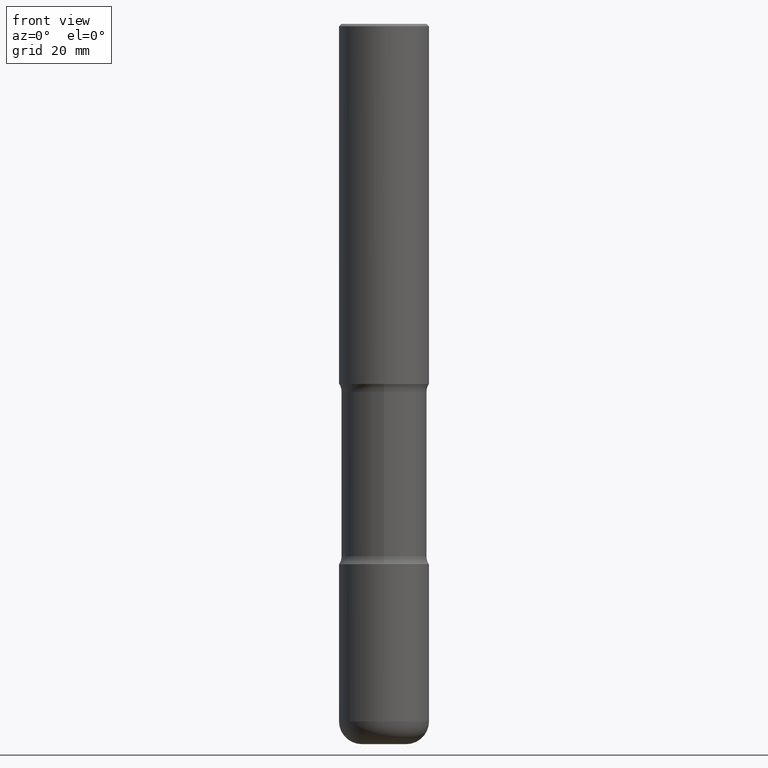
[diagram: clean part render]
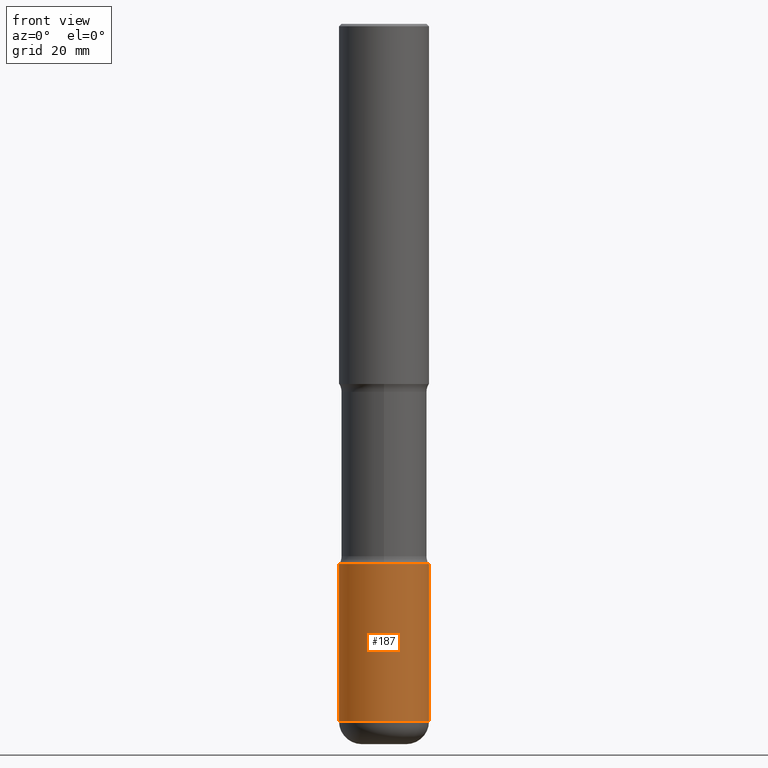
[diagram: same view with one face highlighted and labeled with its STEP entity id]
A machine part, front view. The second image highlights one B-rep face of the part: STEP entity #187.
In plain terms, the highlighted cylindrical surface (partial cylindrical patch) has radius 9.525 mm, axis along (-0, 0, 1).
Its self-contained STEP definition (entity closure, byte-faithful):
#18 = CARTESIAN_POINT ( 'NONE',  ( 0.3750000000000003886, -1.833027702892650691E-14, -4.499999999999999112 ) ) ;
#21 = CARTESIAN_POINT ( 'NONE',  ( 0.000000000000000000, 0.000000000000000000, 0.000000000000000000 ) ) ;
#42 = EDGE_CURVE ( 'NONE', #225, #188, #156, .T. ) ;
#59 = AXIS2_PLACEMENT_3D ( 'NONE', #207, #502, #292 ) ;
#63 = FACE_OUTER_BOUND ( 'NONE', #473, .T. ) ;
#68 = VECTOR ( 'NONE', #343, 39.37007874015748143 ) ;
#113 = EDGE_CURVE ( 'NONE', #225, #444, #451, .T. ) ;
#156 = LINE ( 'NONE', #157, #387 ) ;
#157 = CARTESIAN_POINT ( 'NONE',  ( -0.3750000000000004441, 2.664535259100378852E-15, -1.844600658845591840E-29 ) ) ;
#164 = CARTESIAN_POINT ( 'NONE',  ( -0.3750000000000003886, -1.533405104263603449E-14, -4.499999999999999112 ) ) ;
#177 = CARTESIAN_POINT ( 'NONE',  ( -0.3750000000000004996, -1.762097131957829410E-14, -5.809999999999998721 ) ) ;
#180 = ORIENTED_EDGE ( 'NONE', *, *, #113, .T. ) ;
#187 = ADVANCED_FACE ( 'NONE', ( #63 ), #548, .T. ) ;
#188 = VERTEX_POINT ( 'NONE', #164 ) ;
#206 = DIRECTION ( 'NONE',  ( 1.000000000000000000, -6.982962677686265922E-15, 4.876176775795935793E-29 ) ) ;
#207 = CARTESIAN_POINT ( 'NONE',  ( 1.420817376393564022E-28, -2.028550657867867295E-14, -5.809999999999998721 ) ) ;
#213 = CARTESIAN_POINT ( 'NONE',  ( 1.100460962783311244E-28, -1.571166602479415374E-14, -4.499999999999999112 ) ) ;
#225 = VERTEX_POINT ( 'NONE', #177 ) ;
#244 = EDGE_CURVE ( 'NONE', #188, #363, #536, .T. ) ;
#268 = DIRECTION ( 'NONE',  ( -2.445468806185136877E-29, 3.491481338843145188E-15, 1.000000000000000000 ) ) ;
#270 = CARTESIAN_POINT ( 'NONE',  ( 0.3750000000000004996, -2.290411758281102297E-14, -5.809999999999998721 ) ) ;
#288 = EDGE_CURVE ( 'NONE', #444, #363, #391, .T. ) ;
#292 = DIRECTION ( 'NONE',  ( 1.000000000000000000, -6.982962677686263555E-15, 0.000000000000000000 ) ) ;
#302 = CARTESIAN_POINT ( 'NONE',  ( 0.3750000000000004441, -2.618611004132352777E-15, 1.828566290923478164E-29 ) ) ;
#309 = AXIS2_PLACEMENT_3D ( 'NONE', #21, #325, #206 ) ;
#318 = ORIENTED_EDGE ( 'NONE', *, *, #288, .T. ) ;
#325 = DIRECTION ( 'NONE',  ( -2.445468806185136597E-29, 3.491481338843145583E-15, 1.000000000000000000 ) ) ;
#343 = DIRECTION ( 'NONE',  ( -2.445468806185136877E-29, 3.491481338843145188E-15, 1.000000000000000000 ) ) ;
#348 = DIRECTION ( 'NONE',  ( -2.445468806185136597E-29, 3.491481338843145583E-15, 1.000000000000000000 ) ) ;
#363 = VERTEX_POINT ( 'NONE', #18 ) ;
#372 = AXIS2_PLACEMENT_3D ( 'NONE', #213, #348, #517 ) ;
#386 = ORIENTED_EDGE ( 'NONE', *, *, #244, .F. ) ;
#387 = VECTOR ( 'NONE', #268, 39.37007874015748143 ) ;
#391 = LINE ( 'NONE', #302, #68 ) ;
#444 = VERTEX_POINT ( 'NONE', #270 ) ;
#451 = CIRCLE ( 'NONE', #59, 0.3750000000000004996 ) ;
#473 = EDGE_LOOP ( 'NONE', ( #529, #180, #318, #386 ) ) ;
#502 = DIRECTION ( 'NONE',  ( -2.445468806185136597E-29, 3.491481338843145583E-15, 1.000000000000000000 ) ) ;
#517 = DIRECTION ( 'NONE',  ( 1.000000000000000000, -6.982962677686265922E-15, 0.000000000000000000 ) ) ;
#529 = ORIENTED_EDGE ( 'NONE', *, *, #42, .F. ) ;
#536 = CIRCLE ( 'NONE', #372, 0.3750000000000003886 ) ;
#548 = CYLINDRICAL_SURFACE ( 'NONE', #309, 0.3750000000000004441 ) ;